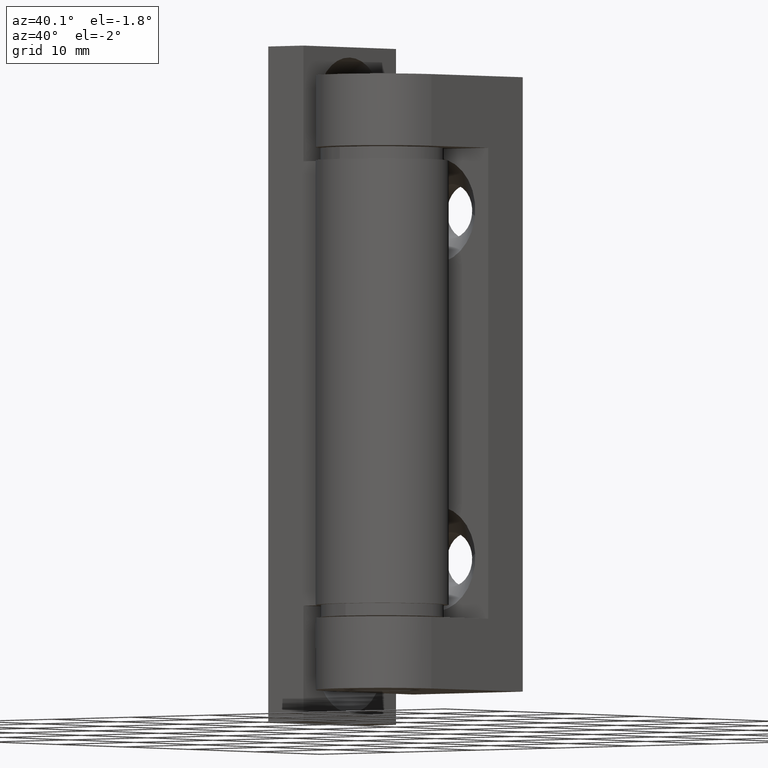
[diagram: clean part render]
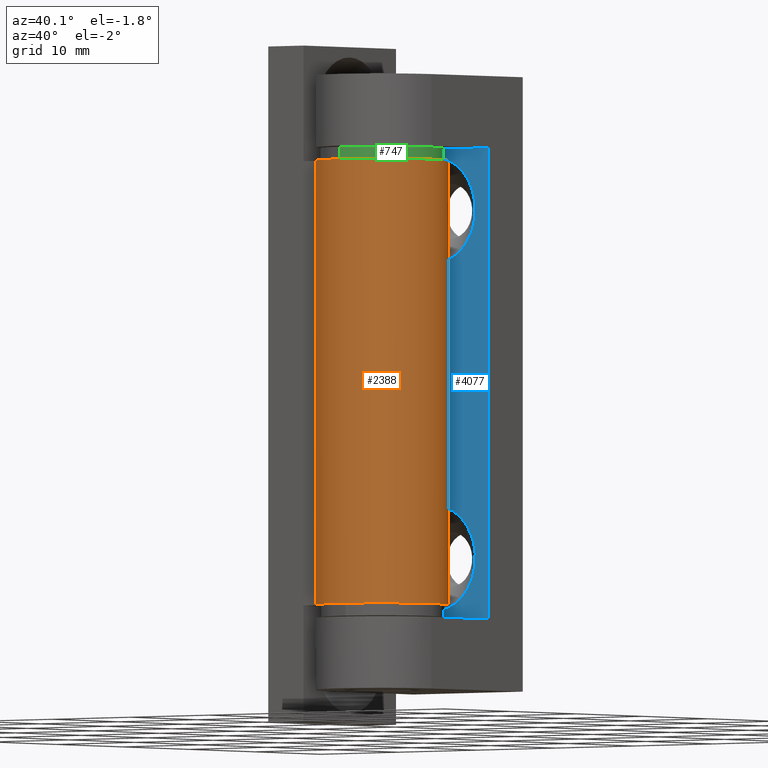
[diagram: same view with three faces highlighted in distinct colors, each labeled with its STEP entity id]
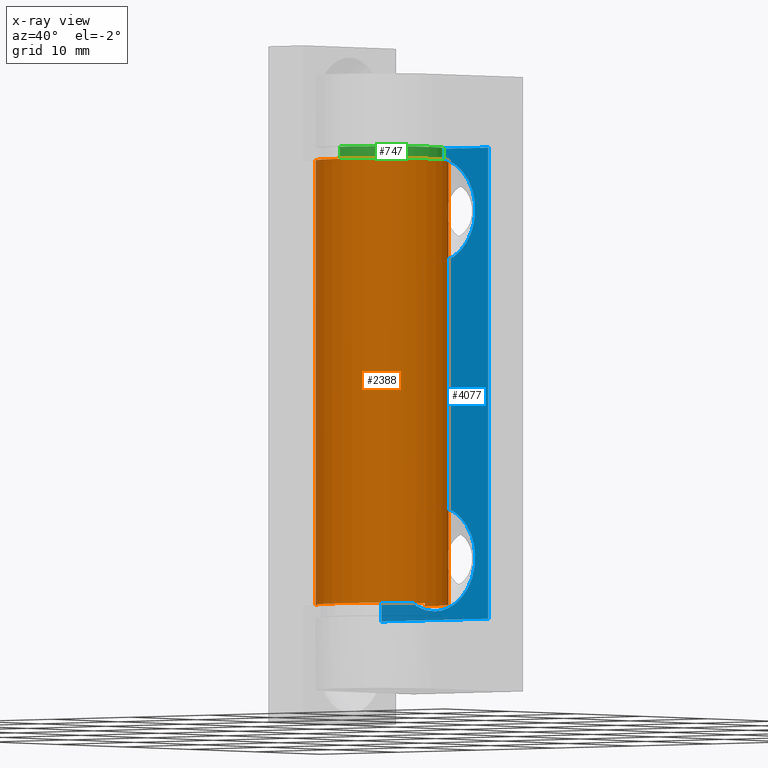
[diagram: x-ray of the same camera — body ghosted, the three highlighted faces saturated]
A machine part, auxiliary view with three faces highlighted in distinct colors.
The next image is the same camera in x-ray (body ghosted, the three faces saturated) — at least one of them is partly hidden behind the body in this view.
Their STEP definitions:

[orange] entity #2388 — the highlighted face is a freeform B-spline surface patch.
#2249=CARTESIAN_POINT('',(-5.766281571218991,-3.000000142492365,8.300000394231949));
#2250=VERTEX_POINT('',#2249);
#2265=CARTESIAN_POINT('',(-2.469136E-013,6.500000308733701,8.300000394231949));
#2266=VERTEX_POINT('',#2265);
#2272=CARTESIAN_POINT('',(-2.469136E-013,6.500000308733701,8.300000394231949));
#2273=CARTESIAN_POINT('',(5.535637743367740,6.500000308733381,8.300000394231949));
#2274=CARTESIAN_POINT('',(6.417071291895028,1.034987945954312,8.300000394231949));
#2275=CARTESIAN_POINT('',(7.298504840422350,-4.430024416824968,8.300000394231949));
#2276=CARTESIAN_POINT('',(2.043566498455833,-6.170400309536085,8.300000394231949));
#2277=CARTESIAN_POINT('',(-3.211371843510681,-7.910776202247200,8.300000394231949));
#2278=CARTESIAN_POINT('',(-5.766281571218997,-3.000000142492367,8.300000394231949));
#2286=(BOUNDED_CURVE()B_SPLINE_CURVE(2,(#2272,#2273,#2274,#2275,#2276,#2277,#2278),.UNSPECIFIED.,.F.,.U.)B_SPLINE_CURVE_WITH_KNOTS((3,2,2,3),(0.0,0.333333333333333,0.666666666666667,1.0),.UNSPECIFIED.)CURVE()GEOMETRIC_REPRESENTATION_ITEM()RATIONAL_B_SPLINE_CURVE((1.0,0.761324144894682,1.0,0.761324144894682,1.0,0.761324144894682,1.0))REPRESENTATION_ITEM(''));
#2287=EDGE_CURVE('',#2266,#2250,#2286,.T.);
#2303=CARTESIAN_POINT('',(-5.766281571218991,-3.000000142492365,51.700002455618197));
#2304=VERTEX_POINT('',#2303);
#2312=CARTESIAN_POINT('',(-2.469136E-013,6.500000308733701,51.700002455618197));
#2313=VERTEX_POINT('',#2312);
#2314=CARTESIAN_POINT('',(-2.469136E-013,6.500000308733701,51.700002455618197));
#2315=CARTESIAN_POINT('',(5.535637743367740,6.500000308733381,51.700002455618190));
#2316=CARTESIAN_POINT('',(6.417071291895028,1.034987945954312,51.700002455618197));
#2317=CARTESIAN_POINT('',(7.298504840422350,-4.430024416824968,51.700002455618190));
#2318=CARTESIAN_POINT('',(2.043566498455833,-6.170400309536085,51.700002455618197));
#2319=CARTESIAN_POINT('',(-3.211371843510681,-7.910776202247200,51.700002455618190));
#2320=CARTESIAN_POINT('',(-5.766281571218997,-3.000000142492367,51.700002455618197));
#2328=(BOUNDED_CURVE()B_SPLINE_CURVE(2,(#2314,#2315,#2316,#2317,#2318,#2319,#2320),.UNSPECIFIED.,.F.,.U.)B_SPLINE_CURVE_WITH_KNOTS((3,2,2,3),(0.0,0.333333333333333,0.666666666666667,1.0),.UNSPECIFIED.)CURVE()GEOMETRIC_REPRESENTATION_ITEM()RATIONAL_B_SPLINE_CURVE((1.0,0.761324144894682,1.0,0.761324144894682,1.0,0.761324144894682,1.0))REPRESENTATION_ITEM(''));
#2329=EDGE_CURVE('',#2313,#2304,#2328,.T.);
#2352=CARTESIAN_POINT('',(-5.842836459194272,-2.848028462751760,52.785002507152853));
#2353=CARTESIAN_POINT('',(-5.842836459194272,-2.848028462751760,7.187875341408926));
#2354=CARTESIAN_POINT('',(-3.352501274907022,-7.957043839764197,52.785002507152853));
#2355=CARTESIAN_POINT('',(-3.352501274907022,-7.957043839764197,7.187875341408928));
#2356=CARTESIAN_POINT('',(2.043079222518355,-6.170561668442169,52.785002507152853));
#2357=CARTESIAN_POINT('',(2.043079222518355,-6.170561668442169,7.187875341408926));
#2358=CARTESIAN_POINT('',(7.438659719943731,-4.384079497120140,52.785002507152853));
#2359=CARTESIAN_POINT('',(7.438659719943731,-4.384079497120140,7.187875341408928));
#2360=CARTESIAN_POINT('',(6.387969354132745,1.201603738424148,52.785002507152853));
#2361=CARTESIAN_POINT('',(6.387969354132745,1.201603738424148,7.187875341408926));
#2362=CARTESIAN_POINT('',(5.337278988321759,6.787286973968436,52.785002507152853));
#2363=CARTESIAN_POINT('',(5.337278988321759,6.787286973968436,7.187875341408928));
#2364=CARTESIAN_POINT('',(-0.338645939454439,6.491172693837765,52.785002507152853));
#2365=CARTESIAN_POINT('',(-0.338645939454439,6.491172693837765,7.187875341408926));
#2373=(BOUNDED_SURFACE()B_SPLINE_SURFACE(1,2,((#2352,#2354,#2356,#2358,#2360,#2362,#2364),(#2353,#2355,#2357,#2359,#2361,#2363,#2365)),.UNSPECIFIED.,.F.,.F.,.U.)B_SPLINE_SURFACE_WITH_KNOTS((2,2),(3,2,2,3),(0.0,45.597127165743927),(0.0,9.764127293913314,19.528254587826630,29.292381881739939),.UNSPECIFIED.)GEOMETRIC_REPRESENTATION_ITEM()RATIONAL_B_SPLINE_SURFACE(((1.0,0.752797991535748,1.0,0.752797991535748,1.0,0.752797991535748,1.0),(1.0,0.752797991535748,1.0,0.752797991535748,1.0,0.752797991535748,1.0)))REPRESENTATION_ITEM('')SURFACE());
#2374=ORIENTED_EDGE('',*,*,#2287,.F.);
#2375=CARTESIAN_POINT('',(-2.469136E-013,6.500000308733701,51.700002455618197));
#2376=CARTESIAN_POINT('',(-2.469136E-013,6.500000308733701,8.300000394231949));
#2377=QUASI_UNIFORM_CURVE('',1,(#2375,#2376),.UNSPECIFIED.,.F.,.U.);
#2378=EDGE_CURVE('',#2313,#2266,#2377,.T.);
#2379=ORIENTED_EDGE('',*,*,#2378,.F.);
#2380=ORIENTED_EDGE('',*,*,#2329,.T.);
#2381=CARTESIAN_POINT('',(-5.766281571218991,-3.000000142492365,51.700002455618197));
#2382=CARTESIAN_POINT('',(-5.766281571218991,-3.000000142492365,8.300000394231949));
#2383=QUASI_UNIFORM_CURVE('',1,(#2381,#2382),.UNSPECIFIED.,.F.,.U.);
#2384=EDGE_CURVE('',#2304,#2250,#2383,.T.);
#2385=ORIENTED_EDGE('',*,*,#2384,.T.);
#2386=EDGE_LOOP('',(#2374,#2379,#2380,#2385));
#2387=FACE_OUTER_BOUND('',#2386,.T.);
#2388=ADVANCED_FACE('',(#2387),#2373,.T.);

[blue] entity #4077 — the highlighted face is a freeform B-spline surface patch.
#2838=CARTESIAN_POINT('',(5.134124268739874,8.000000379943879,13.404066591484650));
#2839=VERTEX_POINT('',#2838);
#2845=CARTESIAN_POINT('',(0.0,8.000000379979539,18.150002248212999));
#2846=VERTEX_POINT('',#2845);
#2847=CARTESIAN_POINT('',(0.0,8.000000379979539,18.150002248212999));
#2848=CARTESIAN_POINT('',(4.760611031536681,8.000000379979538,18.150002248213003));
#2849=CARTESIAN_POINT('',(5.134124268739874,8.000000379943879,13.404066591484648));
#2857=(BOUNDED_CURVE()B_SPLINE_CURVE(2,(#2847,#2848,#2849),.UNSPECIFIED.,.F.,.U.)B_SPLINE_CURVE_WITH_KNOTS((3,3),(0.0,0.236331300614707),.UNSPECIFIED.)CURVE()GEOMETRIC_REPRESENTATION_ITEM()RATIONAL_B_SPLINE_CURVE((1.0,0.723120658626355,0.969723356134126))REPRESENTATION_ITEM(''));
#2858=EDGE_CURVE('',#2846,#2839,#2857,.T.);
#2860=CARTESIAN_POINT('',(-5.134124268739873,8.000000379943879,12.595937904941360));
#2861=VERTEX_POINT('',#2860);
#2862=CARTESIAN_POINT('',(-5.134124268739873,8.000000379943879,12.595937904941355));
#2863=CARTESIAN_POINT('',(-5.150000000000001,8.000000379979539,12.797658196851806));
#2864=CARTESIAN_POINT('',(-5.150000000000000,8.000000379979539,13.000002248213001));
#2865=CARTESIAN_POINT('',(-5.150000000000001,8.000000379979539,18.150002248212992));
#2866=CARTESIAN_POINT('',(0.0,8.000000379979539,18.150002248212999));
#2874=(BOUNDED_CURVE()B_SPLINE_CURVE(2,(#2862,#2863,#2864,#2865,#2866),.UNSPECIFIED.,.F.,.U.)B_SPLINE_CURVE_WITH_KNOTS((3,2,3),(0.736331300614707,0.750000000000000,1.0),.UNSPECIFIED.)CURVE()GEOMETRIC_REPRESENTATION_ITEM()RATIONAL_B_SPLINE_CURVE((0.969723356134126,0.983986122560192,1.0,0.707106781186547,1.0))REPRESENTATION_ITEM(''));
#2875=EDGE_CURVE('',#2861,#2846,#2874,.T.);
#2908=CARTESIAN_POINT('',(0.0,8.000000379979539,7.850002248213000));
#2909=VERTEX_POINT('',#2908);
#2910=CARTESIAN_POINT('',(0.0,8.000000379979539,7.850002248213000));
#2911=CARTESIAN_POINT('',(-4.760611031536683,8.000000379979539,7.850002248213001));
#2912=CARTESIAN_POINT('',(-5.134124268739873,8.000000379943879,12.595937904941360));
#2920=(BOUNDED_CURVE()B_SPLINE_CURVE(2,(#2910,#2911,#2912),.UNSPECIFIED.,.F.,.U.)B_SPLINE_CURVE_WITH_KNOTS((3,3),(0.500000000000000,0.736331300614707),.UNSPECIFIED.)CURVE()GEOMETRIC_REPRESENTATION_ITEM()RATIONAL_B_SPLINE_CURVE((1.0,0.723120658626355,0.969723356134126))REPRESENTATION_ITEM(''));
#2921=EDGE_CURVE('',#2909,#2861,#2920,.T.);
#2923=CARTESIAN_POINT('',(5.134124268739874,8.000000379943879,13.404066591484648));
#2924=CARTESIAN_POINT('',(5.150000000000000,8.000000379979539,13.202346299574197));
#2925=CARTESIAN_POINT('',(5.150000000000000,8.000000379979539,13.000002248213001));
#2926=CARTESIAN_POINT('',(5.150000000000001,8.000000379979539,7.850002248213000));
#2927=CARTESIAN_POINT('',(0.0,8.000000379979539,7.850002248213000));
#2935=(BOUNDED_CURVE()B_SPLINE_CURVE(2,(#2923,#2924,#2925,#2926,#2927),.UNSPECIFIED.,.F.,.U.)B_SPLINE_CURVE_WITH_KNOTS((3,2,3),(0.236331300614707,0.250000000000000,0.500000000000000),.UNSPECIFIED.)CURVE()GEOMETRIC_REPRESENTATION_ITEM()RATIONAL_B_SPLINE_CURVE((0.969723356134126,0.983986122560192,1.0,0.707106781186547,1.0))REPRESENTATION_ITEM(''));
#2936=EDGE_CURVE('',#2839,#2909,#2935,.T.);
#3166=CARTESIAN_POINT('',(5.113999060776107,8.000000379931375,46.392124292771904));
#3167=VERTEX_POINT('',#3166);
#3173=CARTESIAN_POINT('',(0.0,8.000000379979539,52.150000601635107));
#3174=VERTEX_POINT('',#3173);
#3175=CARTESIAN_POINT('',(5.113999060776107,8.000000379931377,46.392124292771889));
#3176=CARTESIAN_POINT('',(5.150000000000000,8.000000379979539,46.694996385048583));
#3177=CARTESIAN_POINT('',(5.150000000000000,8.000000379979539,47.000000601635101));
#3178=CARTESIAN_POINT('',(5.150000000000001,8.000000379979539,52.150000601635099));
#3179=CARTESIAN_POINT('',(0.0,8.000000379979539,52.150000601635107));
#3187=(BOUNDED_CURVE()B_SPLINE_CURVE(2,(#3175,#3176,#3177,#3178,#3179),.UNSPECIFIED.,.F.,.U.)B_SPLINE_CURVE_WITH_KNOTS((3,2,3),(0.229562473490844,0.250000000000000,0.500000000000000),.UNSPECIFIED.)CURVE()GEOMETRIC_REPRESENTATION_ITEM()RATIONAL_B_SPLINE_CURVE((0.956026754139277,0.976055948304593,1.0,0.707106781186547,1.0))REPRESENTATION_ITEM(''));
#3188=EDGE_CURVE('',#3167,#3174,#3187,.T.);
#3190=CARTESIAN_POINT('',(-5.140394211900839,8.000000379926956,47.314400580639472));
#3191=VERTEX_POINT('',#3190);
#3192=CARTESIAN_POINT('',(0.0,8.000000379979539,52.150000601635107));
#3193=CARTESIAN_POINT('',(-4.844636243815268,8.000000379979541,52.150000601635099));
#3194=CARTESIAN_POINT('',(-5.140394211900839,8.000000379926956,47.314400580639465));
#3202=(BOUNDED_CURVE()B_SPLINE_CURVE(2,(#3192,#3193,#3194),.UNSPECIFIED.,.F.,.U.)B_SPLINE_CURVE_WITH_KNOTS((3,3),(0.500000000000000,0.739332962215340),.UNSPECIFIED.)CURVE()GEOMETRIC_REPRESENTATION_ITEM()RATIONAL_B_SPLINE_CURVE((1.0,0.719603993314363,0.976072041616131))REPRESENTATION_ITEM(''));
#3203=EDGE_CURVE('',#3174,#3191,#3202,.T.);
#3236=CARTESIAN_POINT('',(0.0,8.000000379979539,41.850000601635102));
#3237=VERTEX_POINT('',#3236);
#3238=CARTESIAN_POINT('',(-5.140394211900839,8.000000379926956,47.314400580639472));
#3239=CARTESIAN_POINT('',(-5.150000000000000,8.000000379979539,47.157347333020596));
#3240=CARTESIAN_POINT('',(-5.150000000000000,8.000000379979539,47.000000601635101));
#3241=CARTESIAN_POINT('',(-5.150000000000001,8.000000379979539,41.850000601635102));
#3242=CARTESIAN_POINT('',(0.0,8.000000379979539,41.850000601635102));
#3250=(BOUNDED_CURVE()B_SPLINE_CURVE(2,(#3238,#3239,#3240,#3241,#3242),.UNSPECIFIED.,.F.,.U.)B_SPLINE_CURVE_WITH_KNOTS((3,2,3),(0.739332962215340,0.750000000000000,1.0),.UNSPECIFIED.)CURVE()GEOMETRIC_REPRESENTATION_ITEM()RATIONAL_B_SPLINE_CURVE((0.976072041616131,0.987502787872184,1.0,0.707106781186547,1.0))REPRESENTATION_ITEM(''));
#3251=EDGE_CURVE('',#3191,#3237,#3250,.T.);
#3253=CARTESIAN_POINT('',(0.0,8.000000379979539,41.850000601635102));
#3254=CARTESIAN_POINT('',(4.574098807973603,8.000000379979541,41.850000601635102));
#3255=CARTESIAN_POINT('',(5.113999060776107,8.000000379931375,46.392124292771896));
#3263=(BOUNDED_CURVE()B_SPLINE_CURVE(2,(#3253,#3254,#3255),.UNSPECIFIED.,.F.,.U.)B_SPLINE_CURVE_WITH_KNOTS((3,3),(0.0,0.229562473490844),.UNSPECIFIED.)CURVE()GEOMETRIC_REPRESENTATION_ITEM()RATIONAL_B_SPLINE_CURVE((1.0,0.731050832881955,0.956026754139277))REPRESENTATION_ITEM(''));
#3264=EDGE_CURVE('',#3237,#3167,#3263,.T.);
#3947=CARTESIAN_POINT('',(-6.809506370501571,8.000000379979539,6.999999509193731));
#3948=VERTEX_POINT('',#3947);
#3973=CARTESIAN_POINT('',(6.809506370501350,8.000000379979529,6.999999509193731));
#3974=VERTEX_POINT('',#3973);
#3980=CARTESIAN_POINT('',(-6.809506370501571,8.000000379979539,6.999999509193731));
#3981=CARTESIAN_POINT('',(6.809506370501350,8.000000379979529,6.999999509193731));
#3982=QUASI_UNIFORM_CURVE('',1,(#3980,#3981),.UNSPECIFIED.,.F.,.U.);
#3983=EDGE_CURVE('',#3948,#3974,#3982,.T.);
#4001=CARTESIAN_POINT('',(-6.809506370501600,8.000000379979539,53.000001694076502));
#4002=VERTEX_POINT('',#4001);
#4008=CARTESIAN_POINT('',(6.809506370501600,8.000000379979539,53.000001694076502));
#4009=VERTEX_POINT('',#4008);
#4010=CARTESIAN_POINT('',(-6.809506370501600,8.000000379979539,53.000001694076502));
#4011=CARTESIAN_POINT('',(6.809506370501600,8.000000379979539,53.000001694076502));
#4012=QUASI_UNIFORM_CURVE('',1,(#4010,#4011),.UNSPECIFIED.,.F.,.U.);
#4013=EDGE_CURVE('',#4002,#4009,#4012,.T.);
#4046=CARTESIAN_POINT('',(-7.489776158363970,8.000000379979539,55.297699986794029));
#4047=CARTESIAN_POINT('',(-7.489776158363970,8.000000379979539,4.702298337571724));
#4048=CARTESIAN_POINT('',(7.489776401890895,8.000000379979539,55.297699986794029));
#4049=CARTESIAN_POINT('',(7.489776401890895,8.000000379979539,4.702298337571724));
#4050=B_SPLINE_SURFACE_WITH_KNOTS('',1,1,((#4046,#4048),(#4047,#4049)),.UNSPECIFIED.,.F.,.F.,.U.,(2,2),(2,2),(0.0,50.595401649222303),(0.0,14.979552560254859),.UNSPECIFIED.);
#4051=CARTESIAN_POINT('',(-6.809506370501600,8.000000379979539,53.000001694076502));
#4052=CARTESIAN_POINT('',(-6.809506370501571,8.000000379979539,6.999999509193731));
#4053=QUASI_UNIFORM_CURVE('',1,(#4051,#4052),.UNSPECIFIED.,.F.,.U.);
#4054=EDGE_CURVE('',#4002,#3948,#4053,.T.);
#4055=ORIENTED_EDGE('',*,*,#4054,.T.);
#4056=ORIENTED_EDGE('',*,*,#3983,.T.);
#4057=CARTESIAN_POINT('',(6.809506370501350,8.000000379979529,6.999999509193731));
#4058=CARTESIAN_POINT('',(6.809506370501600,8.000000379979539,53.000001694076502));
#4059=QUASI_UNIFORM_CURVE('',1,(#4057,#4058),.UNSPECIFIED.,.F.,.U.);
#4060=EDGE_CURVE('',#3974,#4009,#4059,.T.);
#4061=ORIENTED_EDGE('',*,*,#4060,.T.);
#4062=ORIENTED_EDGE('',*,*,#4013,.F.);
#4063=EDGE_LOOP('',(#4055,#4056,#4061,#4062));
#4064=FACE_OUTER_BOUND('',#4063,.T.);
#4065=ORIENTED_EDGE('',*,*,#3203,.F.);
#4066=ORIENTED_EDGE('',*,*,#3188,.F.);
#4067=ORIENTED_EDGE('',*,*,#3264,.F.);
#4068=ORIENTED_EDGE('',*,*,#3251,.F.);
#4069=EDGE_LOOP('',(#4065,#4066,#4067,#4068));
#4070=FACE_BOUND('',#4069,.T.);
#4071=ORIENTED_EDGE('',*,*,#2921,.T.);
#4072=ORIENTED_EDGE('',*,*,#2875,.T.);
#4073=ORIENTED_EDGE('',*,*,#2858,.T.);
#4074=ORIENTED_EDGE('',*,*,#2936,.T.);
#4075=EDGE_LOOP('',(#4071,#4072,#4073,#4074));
#4076=FACE_BOUND('',#4075,.T.);
#4077=ADVANCED_FACE('',(#4064,#4070,#4076),#4050,.T.);

[green] entity #747 — the highlighted face is a freeform B-spline surface patch.
#584=CARTESIAN_POINT('',(-0.708205441614318,5.958057441170243,8.300000394231979));
#585=VERTEX_POINT('',#584);
#603=CARTESIAN_POINT('',(0.366291254649191,-5.988809074981749,8.300000394231979));
#604=VERTEX_POINT('',#603);
#618=CARTESIAN_POINT('',(0.366291254649189,-5.988809074981749,7.100000718702180));
#619=VERTEX_POINT('',#618);
#620=CARTESIAN_POINT('',(0.366291254649191,-5.988809074981749,8.300000394231979));
#621=CARTESIAN_POINT('',(0.366291254649189,-5.988809074981749,7.100000718702180));
#622=QUASI_UNIFORM_CURVE('',1,(#620,#621),.UNSPECIFIED.,.F.,.U.);
#623=EDGE_CURVE('',#604,#619,#622,.T.);
#640=CARTESIAN_POINT('',(-0.708205441614318,5.958057441170243,7.100000718702180));
#641=VERTEX_POINT('',#640);
#657=CARTESIAN_POINT('',(-0.708205441614318,5.958057441170243,8.300000394231979));
#658=CARTESIAN_POINT('',(-0.708205441614318,5.958057441170243,7.100000718702180));
#659=QUASI_UNIFORM_CURVE('',1,(#657,#658),.UNSPECIFIED.,.F.,.U.);
#660=EDGE_CURVE('',#585,#641,#659,.T.);
#665=CARTESIAN_POINT('',(0.366291254607040,-5.988809074984326,8.330000386120224));
#666=CARTESIAN_POINT('',(-5.622517820377285,-6.355100329591367,8.330000386120224));
#667=CARTESIAN_POINT('',(-5.988809074984326,-0.366291254607040,8.330000386120224));
#668=CARTESIAN_POINT('',(-6.334717481278056,5.289261196263394,8.330000386120224));
#669=CARTESIAN_POINT('',(-0.708205441578499,5.958057441174500,8.330000386120222));
#670=CARTESIAN_POINT('',(0.366291254607040,-5.988809074984326,7.069250727016727));
#671=CARTESIAN_POINT('',(-5.622517820377285,-6.355100329591367,7.069250727016727));
#672=CARTESIAN_POINT('',(-5.988809074984326,-0.366291254607040,7.069250727016727));
#673=CARTESIAN_POINT('',(-6.334717481278056,5.289261196263394,7.069250727016727));
#674=CARTESIAN_POINT('',(-0.708205441578499,5.958057441174500,7.069250727016728));
#682=(BOUNDED_SURFACE()B_SPLINE_SURFACE(2,1,((#665,#670),(#666,#671),(#667,#672),(#668,#673),(#669,#674)),.UNSPECIFIED.,.F.,.F.,.U.)B_SPLINE_SURFACE_WITH_KNOTS((3,2,3),(2,2),(0.0,9.941125969132358,19.484606899499418),(0.0,1.0),.UNSPECIFIED.)GEOMETRIC_REPRESENTATION_ITEM()RATIONAL_B_SPLINE_SURFACE(((1.0,1.0),(0.707106781186548,0.707106781186548),(1.0,1.0),(0.718822509939086,0.718822509939086),(0.977505800795127,0.977505800795127)))REPRESENTATION_ITEM('')SURFACE());
#683=CARTESIAN_POINT('',(-6.000000284984680,0.0,8.300000394231979));
#684=VERTEX_POINT('',#683);
#685=CARTESIAN_POINT('',(-6.000000284984680,0.0,8.300000394231979));
#686=CARTESIAN_POINT('',(-6.000000284984679,5.329047408759812,8.300000394231978));
#687=CARTESIAN_POINT('',(-0.708205441614318,5.958057441170244,8.300000394231979));
#695=(BOUNDED_CURVE()B_SPLINE_CURVE(2,(#685,#686,#687),.UNSPECIFIED.,.F.,.U.)B_SPLINE_CURVE_WITH_KNOTS((3,3),(0.0,0.229562473513612),.UNSPECIFIED.)CURVE()GEOMETRIC_REPRESENTATION_ITEM()RATIONAL_B_SPLINE_CURVE((1.0,0.731050832855281,0.956026754183903))REPRESENTATION_ITEM(''));
#696=EDGE_CURVE('',#684,#585,#695,.T.);
#697=ORIENTED_EDGE('',*,*,#696,.T.);
#698=ORIENTED_EDGE('',*,*,#660,.T.);
#699=CARTESIAN_POINT('',(-6.000000284984680,0.0,7.100000718702180));
#700=VERTEX_POINT('',#699);
#701=CARTESIAN_POINT('',(-6.000000284984680,0.0,7.100000718702180));
#702=CARTESIAN_POINT('',(-6.000000284984679,5.329047408759812,7.100000718702179));
#703=CARTESIAN_POINT('',(-0.708205441614318,5.958057441170244,7.100000718702180));
#711=(BOUNDED_CURVE()B_SPLINE_CURVE(2,(#701,#702,#703),.UNSPECIFIED.,.F.,.U.)B_SPLINE_CURVE_WITH_KNOTS((3,3),(0.0,0.229562473513612),.UNSPECIFIED.)CURVE()GEOMETRIC_REPRESENTATION_ITEM()RATIONAL_B_SPLINE_CURVE((1.0,0.731050832855281,0.956026754183903))REPRESENTATION_ITEM(''));
#712=EDGE_CURVE('',#700,#641,#711,.T.);
#713=ORIENTED_EDGE('',*,*,#712,.F.);
#714=CARTESIAN_POINT('',(0.366291254649189,-5.988809074981749,7.100000718702181));
#715=CARTESIAN_POINT('',(0.183316588540869,-6.000000284984680,7.100000718702180));
#716=CARTESIAN_POINT('',(0.0,-6.000000284984680,7.100000718702180));
#717=CARTESIAN_POINT('',(-6.000000284984680,-6.000000284984680,7.100000718702179));
#718=CARTESIAN_POINT('',(-6.000000284984680,0.0,7.100000718702180));
#726=(BOUNDED_CURVE()B_SPLINE_CURVE(2,(#714,#715,#716,#717,#718),.UNSPECIFIED.,.F.,.U.)B_SPLINE_CURVE_WITH_KNOTS((3,2,3),(0.739332962239540,0.750000000000000,1.0),.UNSPECIFIED.)CURVE()GEOMETRIC_REPRESENTATION_ITEM()RATIONAL_B_SPLINE_CURVE((0.976072041667997,0.987502787900536,1.0,0.707106781186548,1.0))REPRESENTATION_ITEM(''));
#727=EDGE_CURVE('',#619,#700,#726,.T.);
#728=ORIENTED_EDGE('',*,*,#727,.F.);
#729=ORIENTED_EDGE('',*,*,#623,.F.);
#730=CARTESIAN_POINT('',(0.366291254649191,-5.988809074981749,8.300000394231979));
#731=CARTESIAN_POINT('',(0.183316588540871,-6.000000284984681,8.300000394231978));
#732=CARTESIAN_POINT('',(0.0,-6.000000284984680,8.300000394231979));
#733=CARTESIAN_POINT('',(-6.000000284984680,-6.000000284984680,8.300000394231979));
#734=CARTESIAN_POINT('',(-6.000000284984680,0.0,8.300000394231979));
#742=(BOUNDED_CURVE()B_SPLINE_CURVE(2,(#730,#731,#732,#733,#734),.UNSPECIFIED.,.F.,.U.)B_SPLINE_CURVE_WITH_KNOTS((3,2,3),(0.739332962239539,0.750000000000000,1.0),.UNSPECIFIED.)CURVE()GEOMETRIC_REPRESENTATION_ITEM()RATIONAL_B_SPLINE_CURVE((0.976072041667996,0.987502787900536,1.0,0.707106781186548,1.0))REPRESENTATION_ITEM(''));
#743=EDGE_CURVE('',#604,#684,#742,.T.);
#744=ORIENTED_EDGE('',*,*,#743,.T.);
#745=EDGE_LOOP('',(#697,#698,#713,#728,#729,#744));
#746=FACE_OUTER_BOUND('',#745,.T.);
#747=ADVANCED_FACE('',(#746),#682,.T.);